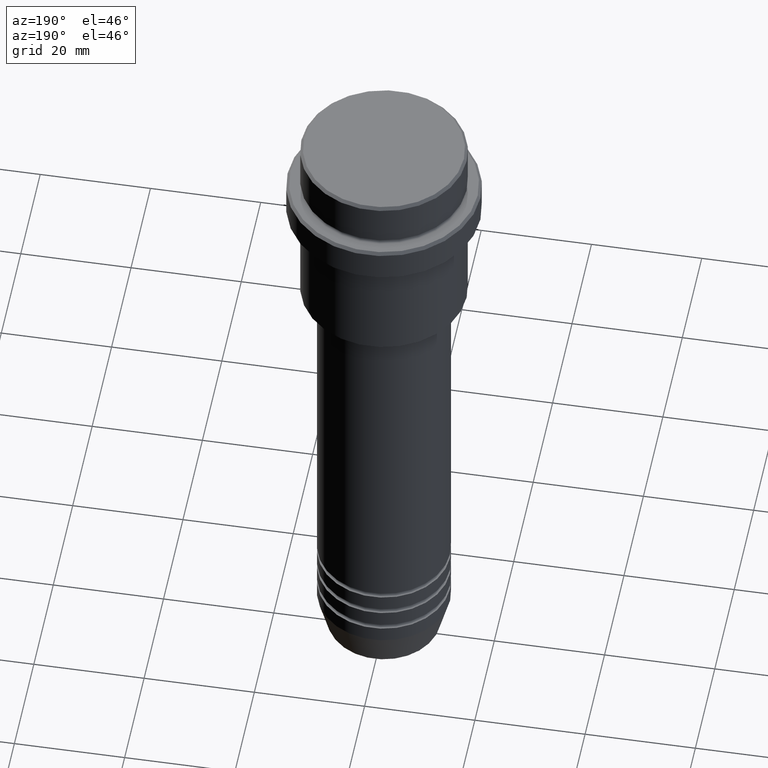
[diagram: clean part render]
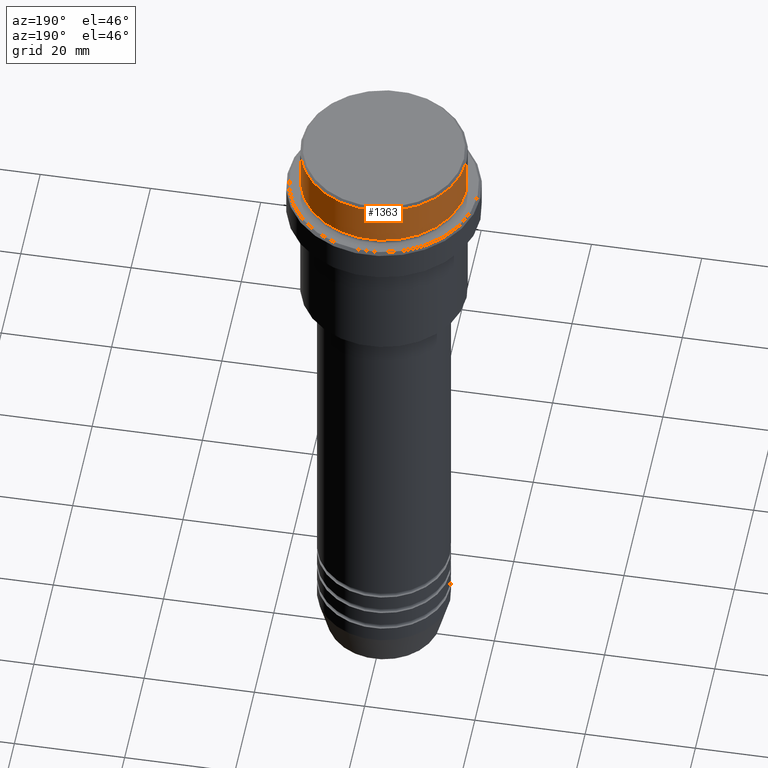
[diagram: same view with one face highlighted and labeled with its STEP entity id]
A machine part, auxiliary view. The second image highlights one B-rep face of the part: STEP entity #1363.
In plain terms, the highlighted cylindrical surface (partial cylindrical patch) has radius 15 mm, axis along (-0, -0, 1).
Its self-contained STEP definition (entity closure, byte-faithful):
#14 = DIRECTION ( 'NONE',  ( 1.000000000000000000, 0.000000000000000000, 0.000000000000000000 ) ) ;
#16 = VERTEX_POINT ( 'NONE', #827 ) ;
#44 = VERTEX_POINT ( 'NONE', #626 ) ;
#46 = EDGE_CURVE ( 'NONE', #16, #540, #943, .T. ) ;
#61 = CIRCLE ( 'NONE', #335, 15.00000000000000000 ) ;
#117 = ORIENTED_EDGE ( 'NONE', *, *, #206, .T. ) ;
#156 = AXIS2_PLACEMENT_3D ( 'NONE', #1364, #1399, #14 ) ;
#206 = EDGE_CURVE ( 'NONE', #228, #16, #61, .T. ) ;
#228 = VERTEX_POINT ( 'NONE', #561 ) ;
#310 = VECTOR ( 'NONE', #1062, 1000.000000000000000 ) ;
#335 = AXIS2_PLACEMENT_3D ( 'NONE', #1226, #352, #343 ) ;
#343 = DIRECTION ( 'NONE',  ( 1.000000000000000000, 0.000000000000000000, 0.000000000000000000 ) ) ;
#352 = DIRECTION ( 'NONE',  ( -0.000000000000000000, -0.000000000000000000, 1.000000000000000000 ) ) ;
#369 = EDGE_LOOP ( 'NONE', ( #117, #667, #381, #968 ) ) ;
#381 = ORIENTED_EDGE ( 'NONE', *, *, #739, .T. ) ;
#444 = CARTESIAN_POINT ( 'NONE',  ( 15.00000000000000000, 0.000000000000000000, 0.000000000000000000 ) ) ;
#446 = CARTESIAN_POINT ( 'NONE',  ( -15.00000000000000000, 1.836970198721029589E-15, -0.5000000000000107692 ) ) ;
#485 = VECTOR ( 'NONE', #883, 1000.000000000000000 ) ;
#520 = AXIS2_PLACEMENT_3D ( 'NONE', #604, #809, #1345 ) ;
#540 = VERTEX_POINT ( 'NONE', #446 ) ;
#561 = CARTESIAN_POINT ( 'NONE',  ( 15.00000000000000000, 0.000000000000000000, -7.999999999999998224 ) ) ;
#604 = CARTESIAN_POINT ( 'NONE',  ( 0.000000000000000000, 0.000000000000000000, -0.5000000000000107692 ) ) ;
#626 = CARTESIAN_POINT ( 'NONE',  ( 15.00000000000000000, 0.000000000000000000, -0.5000000000000107692 ) ) ;
#667 = ORIENTED_EDGE ( 'NONE', *, *, #46, .T. ) ;
#685 = LINE ( 'NONE', #444, #485 ) ;
#739 = EDGE_CURVE ( 'NONE', #540, #44, #770, .T. ) ;
#745 = FACE_OUTER_BOUND ( 'NONE', #369, .T. ) ;
#770 = CIRCLE ( 'NONE', #520, 15.00000000000000000 ) ;
#809 = DIRECTION ( 'NONE',  ( 0.000000000000000000, 0.000000000000000000, -1.000000000000000000 ) ) ;
#827 = CARTESIAN_POINT ( 'NONE',  ( -15.00000000000000000, 1.836970198721029589E-15, -7.999999999999998224 ) ) ;
#883 = DIRECTION ( 'NONE',  ( -0.000000000000000000, -0.000000000000000000, 1.000000000000000000 ) ) ;
#930 = EDGE_CURVE ( 'NONE', #228, #44, #685, .T. ) ;
#943 = LINE ( 'NONE', #1376, #310 ) ;
#968 = ORIENTED_EDGE ( 'NONE', *, *, #930, .F. ) ;
#1062 = DIRECTION ( 'NONE',  ( -0.000000000000000000, -0.000000000000000000, 1.000000000000000000 ) ) ;
#1179 = CYLINDRICAL_SURFACE ( 'NONE', #156, 15.00000000000000000 ) ;
#1226 = CARTESIAN_POINT ( 'NONE',  ( 0.000000000000000000, 0.000000000000000000, -7.999999999999998224 ) ) ;
#1345 = DIRECTION ( 'NONE',  ( 1.000000000000000000, 0.000000000000000000, 0.000000000000000000 ) ) ;
#1363 = ADVANCED_FACE ( 'NONE', ( #745 ), #1179, .T. ) ;
#1364 = CARTESIAN_POINT ( 'NONE',  ( 0.000000000000000000, 0.000000000000000000, 0.000000000000000000 ) ) ;
#1376 = CARTESIAN_POINT ( 'NONE',  ( -15.00000000000000000, 1.836970198721029589E-15, 0.000000000000000000 ) ) ;
#1399 = DIRECTION ( 'NONE',  ( -0.000000000000000000, -0.000000000000000000, 1.000000000000000000 ) ) ;